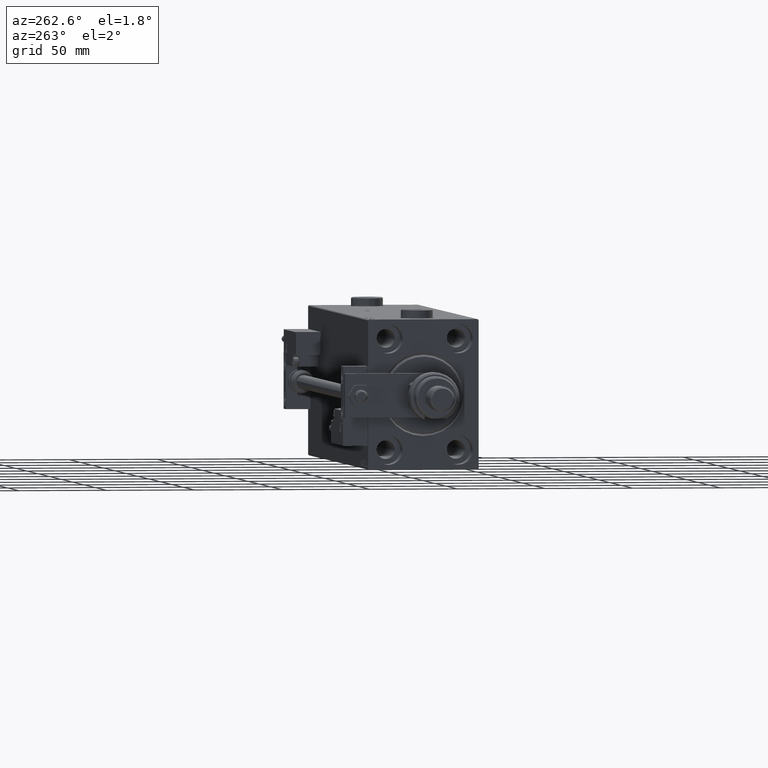
[diagram: clean part render]
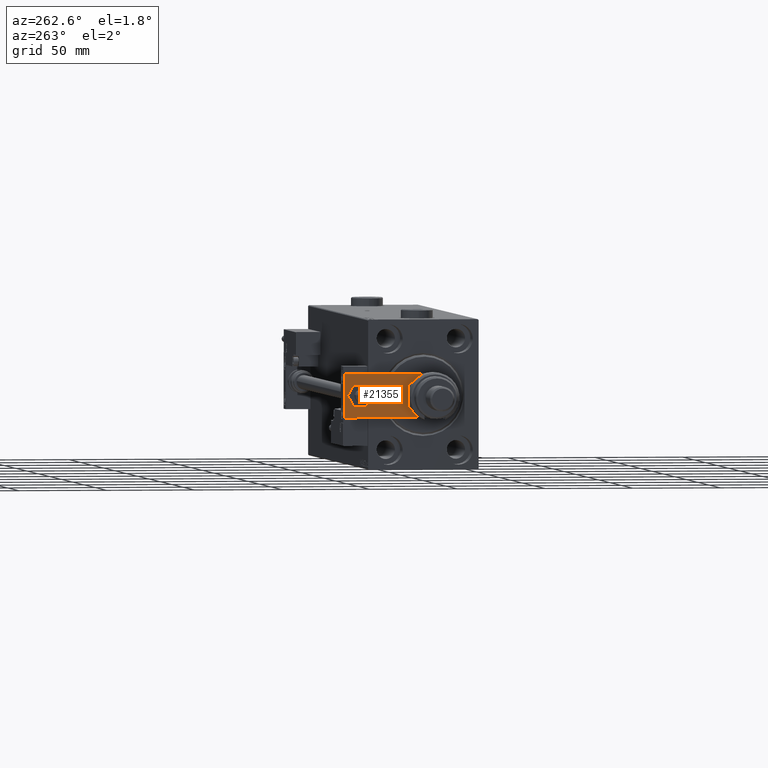
[diagram: same view with one face highlighted and labeled with its STEP entity id]
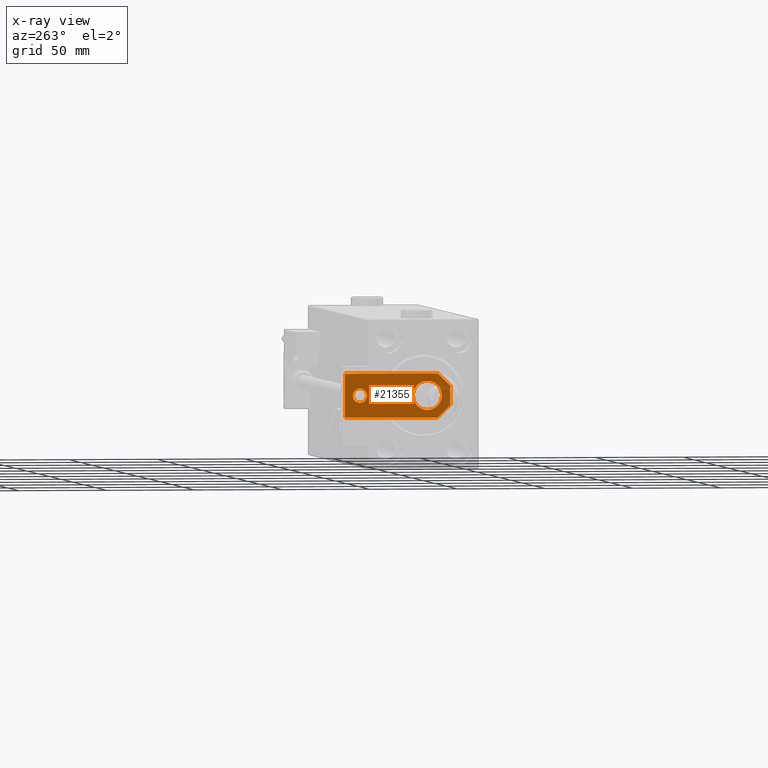
[diagram: x-ray of the same camera — body ghosted, the highlighted face saturated]
A machine part, auxiliary view. The second image highlights one B-rep face of the part: STEP entity #21355.
The next image is the same camera in x-ray: the body ghosted, the highlighted face saturated — about 7% of this face is hidden behind the body in this view.
In plain terms, the highlighted planar face has unit normal (-1, 0, 0).
Its self-contained STEP definition (entity closure, byte-faithful):
#203 = CARTESIAN_POINT ( 'NONE',  ( 2.749999999999980016, -2.749999999999988010, 6.000000000000000000 ) ) ;
#442 = CARTESIAN_POINT ( 'NONE',  ( 12.50000000000000355, 4.814824860968089633E-32, 6.000000000000000000 ) ) ;
#469 = DIRECTION ( 'NONE',  ( 0.7071067811865486830, 0.7071067811865464625, -0.000000000000000000 ) ) ;
#662 = EDGE_LOOP ( 'NONE', ( #1516, #792, #27607, #31750, #49921, #44511 ) ) ;
#792 = ORIENTED_EDGE ( 'NONE', *, *, #11405, .T. ) ;
#1516 = ORIENTED_EDGE ( 'NONE', *, *, #48159, .T. ) ;
#2747 = VERTEX_POINT ( 'NONE', #22928 ) ;
#3283 = CARTESIAN_POINT ( 'NONE',  ( 12.50000000000000355, 60.00000000000000000, 6.000000000000000000 ) ) ;
#4790 = LINE ( 'NONE', #17429, #20573 ) ;
#4883 = DIRECTION ( 'NONE',  ( 0.000000000000000000, 0.000000000000000000, 1.000000000000000000 ) ) ;
#5041 = ORIENTED_EDGE ( 'NONE', *, *, #41793, .F. ) ;
#5395 = VERTEX_POINT ( 'NONE', #7017 ) ;
#5677 = CARTESIAN_POINT ( 'NONE',  ( -2.750000000000013767, -2.750000000000005773, 6.000000000000000000 ) ) ;
#5706 = VERTEX_POINT ( 'NONE', #27546 ) ;
#6318 = EDGE_LOOP ( 'NONE', ( #36826, #17521 ) ) ;
#7017 = CARTESIAN_POINT ( 'NONE',  ( 5.499999999999976907, 4.814824860968089633E-32, 6.000000000000000000 ) ) ;
#7042 = DIRECTION ( 'NONE',  ( 1.000000000000000000, 0.000000000000000000, 0.000000000000000000 ) ) ;
#8865 = CARTESIAN_POINT ( 'NONE',  ( 4.000000000000000888, 51.50000000000000000, 6.000000000000000000 ) ) ;
#9180 = FACE_BOUND ( 'NONE', #6318, .T. ) ;
#9217 = LINE ( 'NONE', #17989, #46451 ) ;
#9514 = VECTOR ( 'NONE', #50742, 1000.000000000000000 ) ;
#9950 = EDGE_CURVE ( 'NONE', #50938, #40663, #30111, .T. ) ;
#10981 = LINE ( 'NONE', #3283, #30386 ) ;
#11405 = EDGE_CURVE ( 'NONE', #15670, #40002, #44627, .T. ) ;
#12596 = CARTESIAN_POINT ( 'NONE',  ( 12.50000000000000355, 7.000000000000006217, 6.000000000000000000 ) ) ;
#13302 = FACE_BOUND ( 'NONE', #35442, .T. ) ;
#13324 = EDGE_CURVE ( 'NONE', #40002, #5395, #4790, .T. ) ;
#13637 = AXIS2_PLACEMENT_3D ( 'NONE', #38675, #4883, #16445 ) ;
#14022 = DIRECTION ( 'NONE',  ( 0.000000000000000000, 0.000000000000000000, 1.000000000000000000 ) ) ;
#14107 = CARTESIAN_POINT ( 'NONE',  ( 0.000000000000000000, 0.000000000000000000, 6.000000000000000000 ) ) ;
#14343 = AXIS2_PLACEMENT_3D ( 'NONE', #49083, #32584, #7042 ) ;
#14651 = AXIS2_PLACEMENT_3D ( 'NONE', #14107, #22612, #52032 ) ;
#15670 = VERTEX_POINT ( 'NONE', #34486 ) ;
#16445 = DIRECTION ( 'NONE',  ( 1.000000000000000000, 0.000000000000000000, 0.000000000000000000 ) ) ;
#17163 = DIRECTION ( 'NONE',  ( 1.000000000000000000, 0.000000000000000000, 0.000000000000000000 ) ) ;
#17207 = LINE ( 'NONE', #442, #9514 ) ;
#17429 = CARTESIAN_POINT ( 'NONE',  ( -12.50000000000000355, 4.814824860968089633E-32, 6.000000000000000000 ) ) ;
#17521 = ORIENTED_EDGE ( 'NONE', *, *, #38386, .F. ) ;
#17564 = VECTOR ( 'NONE', #469, 999.9999999999998863 ) ;
#17603 = DIRECTION ( 'NONE',  ( 1.000000000000000000, 0.000000000000000000, 0.000000000000000000 ) ) ;
#17894 = EDGE_CURVE ( 'NONE', #42422, #2747, #46129, .T. ) ;
#17989 = CARTESIAN_POINT ( 'NONE',  ( -12.49999999999999822, 60.00000000000000000, 6.000000000000000000 ) ) ;
#18481 = FACE_OUTER_BOUND ( 'NONE', #662, .T. ) ;
#19928 = EDGE_CURVE ( 'NONE', #5706, #31746, #10981, .T. ) ;
#20573 = VECTOR ( 'NONE', #17163, 1000.000000000000000 ) ;
#21355 = ADVANCED_FACE ( 'NONE', ( #13302, #18481, #9180 ), #51228, .T. ) ;
#21831 = DIRECTION ( 'NONE',  ( 0.000000000000000000, 0.000000000000000000, 1.000000000000000000 ) ) ;
#22612 = DIRECTION ( 'NONE',  ( -0.000000000000000000, 0.000000000000000000, 1.000000000000000000 ) ) ;
#22917 = DIRECTION ( 'NONE',  ( 1.000000000000000000, 0.000000000000000000, 0.000000000000000000 ) ) ;
#22928 = CARTESIAN_POINT ( 'NONE',  ( 8.250000000000000000, 13.00000000000000000, 6.000000000000000000 ) ) ;
#23891 = DIRECTION ( 'NONE',  ( -1.000000000000000000, 0.000000000000000000, 0.000000000000000000 ) ) ;
#25278 = EDGE_CURVE ( 'NONE', #30118, #5706, #17207, .T. ) ;
#25545 = CARTESIAN_POINT ( 'NONE',  ( -8.250000000000000000, 12.99999999999999822, 6.000000000000000000 ) ) ;
#26676 = CARTESIAN_POINT ( 'NONE',  ( -5.500000000000010658, 4.814824860968089633E-32, 6.000000000000000000 ) ) ;
#27546 = CARTESIAN_POINT ( 'NONE',  ( 12.50000000000000355, 60.00000000000000000, 6.000000000000000000 ) ) ;
#27607 = ORIENTED_EDGE ( 'NONE', *, *, #13324, .T. ) ;
#29812 = CARTESIAN_POINT ( 'NONE',  ( -1.432611055310774642E-16, 51.50000000000000000, 6.000000000000000000 ) ) ;
#29819 = DIRECTION ( 'NONE',  ( -8.673617379884035472E-17, -1.000000000000000000, 0.000000000000000000 ) ) ;
#30111 = CIRCLE ( 'NONE', #14343, 4.000000000000000888 ) ;
#30118 = VERTEX_POINT ( 'NONE', #12596 ) ;
#30386 = VECTOR ( 'NONE', #23891, 1000.000000000000000 ) ;
#31746 = VERTEX_POINT ( 'NONE', #48746 ) ;
#31750 = ORIENTED_EDGE ( 'NONE', *, *, #50852, .T. ) ;
#32517 = DIRECTION ( 'NONE',  ( 0.7071067811865465735, -0.7071067811865485719, 0.000000000000000000 ) ) ;
#32584 = DIRECTION ( 'NONE',  ( 0.000000000000000000, 0.000000000000000000, 1.000000000000000000 ) ) ;
#34486 = CARTESIAN_POINT ( 'NONE',  ( -12.50000000000000355, 7.000000000000013323, 6.000000000000000000 ) ) ;
#35396 = VECTOR ( 'NONE', #32517, 1000.000000000000000 ) ;
#35442 = EDGE_LOOP ( 'NONE', ( #53862, #5041 ) ) ;
#36826 = ORIENTED_EDGE ( 'NONE', *, *, #17894, .F. ) ;
#38386 = EDGE_CURVE ( 'NONE', #2747, #42422, #48778, .T. ) ;
#38406 = AXIS2_PLACEMENT_3D ( 'NONE', #29812, #21831, #22917 ) ;
#38675 = CARTESIAN_POINT ( 'NONE',  ( -9.629649721936179265E-32, 12.99999999999999822, 6.000000000000000000 ) ) ;
#40002 = VERTEX_POINT ( 'NONE', #26676 ) ;
#40663 = VERTEX_POINT ( 'NONE', #8865 ) ;
#41793 = EDGE_CURVE ( 'NONE', #40663, #50938, #51603, .T. ) ;
#42422 = VERTEX_POINT ( 'NONE', #25545 ) ;
#43599 = CARTESIAN_POINT ( 'NONE',  ( -4.000000000000000888, 51.50000000000000000, 6.000000000000000000 ) ) ;
#44511 = ORIENTED_EDGE ( 'NONE', *, *, #19928, .T. ) ;
#44627 = LINE ( 'NONE', #5677, #35396 ) ;
#46129 = CIRCLE ( 'NONE', #13637, 8.250000000000000000 ) ;
#46451 = VECTOR ( 'NONE', #29819, 1000.000000000000000 ) ;
#46645 = LINE ( 'NONE', #203, #17564 ) ;
#48159 = EDGE_CURVE ( 'NONE', #31746, #15670, #9217, .T. ) ;
#48746 = CARTESIAN_POINT ( 'NONE',  ( -12.49999999999999822, 60.00000000000000000, 6.000000000000000000 ) ) ;
#48778 = CIRCLE ( 'NONE', #50537, 8.250000000000000000 ) ;
#49083 = CARTESIAN_POINT ( 'NONE',  ( -1.432611055310774642E-16, 51.50000000000000000, 6.000000000000000000 ) ) ;
#49921 = ORIENTED_EDGE ( 'NONE', *, *, #25278, .T. ) ;
#50537 = AXIS2_PLACEMENT_3D ( 'NONE', #51683, #14022, #17603 ) ;
#50742 = DIRECTION ( 'NONE',  ( 0.000000000000000000, 1.000000000000000000, 0.000000000000000000 ) ) ;
#50852 = EDGE_CURVE ( 'NONE', #5395, #30118, #46645, .T. ) ;
#50938 = VERTEX_POINT ( 'NONE', #43599 ) ;
#51228 = PLANE ( 'NONE',  #14651 ) ;
#51603 = CIRCLE ( 'NONE', #38406, 4.000000000000000888 ) ;
#51683 = CARTESIAN_POINT ( 'NONE',  ( -9.629649721936179265E-32, 12.99999999999999822, 6.000000000000000000 ) ) ;
#52032 = DIRECTION ( 'NONE',  ( 1.000000000000000000, 0.000000000000000000, 0.000000000000000000 ) ) ;
#53862 = ORIENTED_EDGE ( 'NONE', *, *, #9950, .F. ) ;